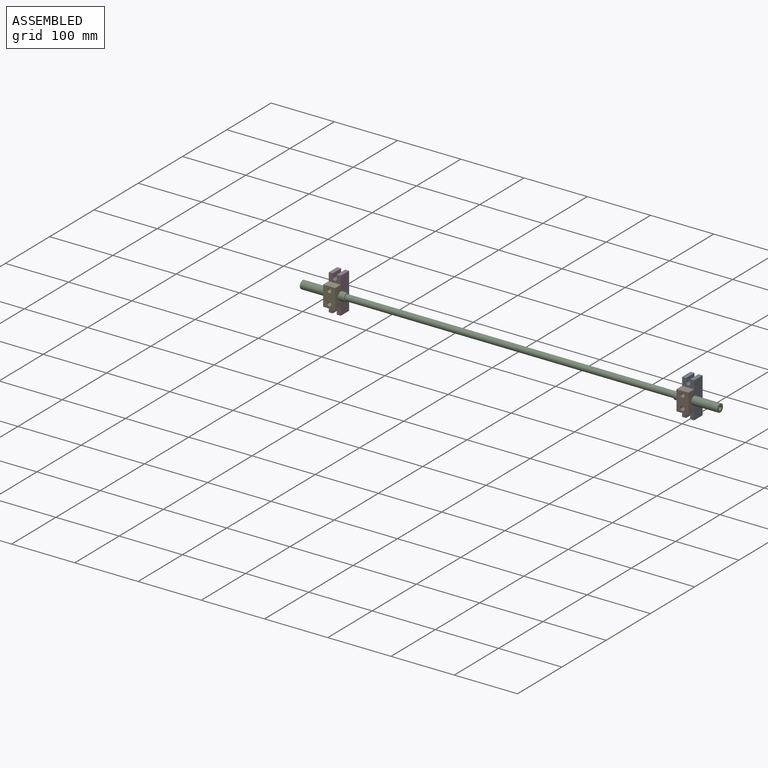
[diagram: assembled view]
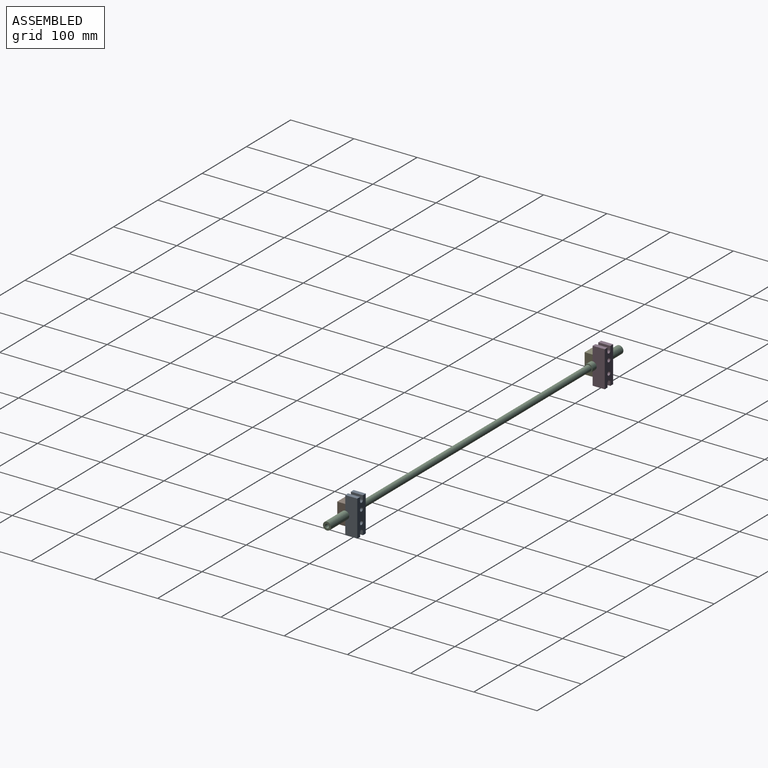
[diagram: assembled view, second angle]
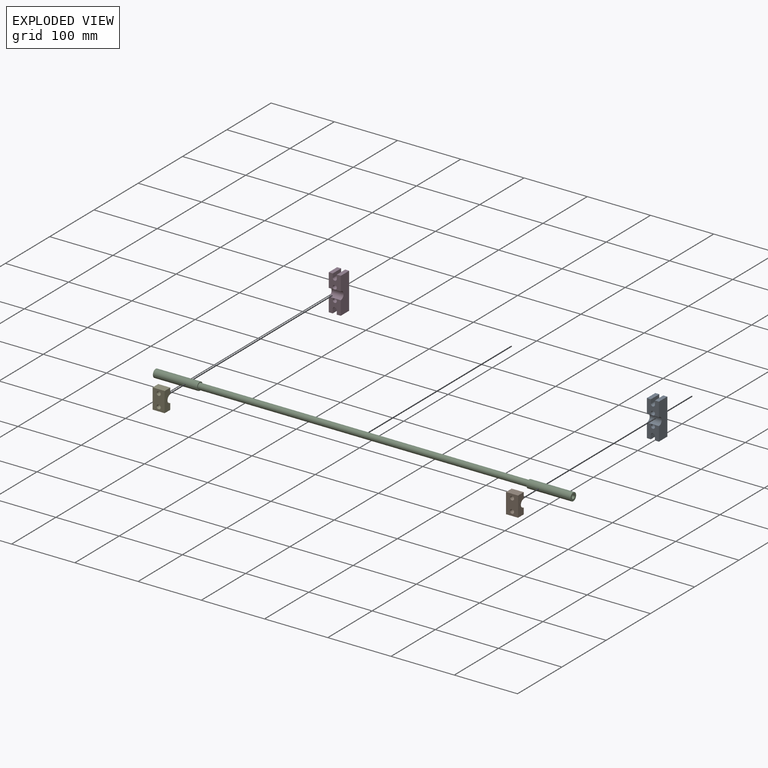
[diagram: exploded view]
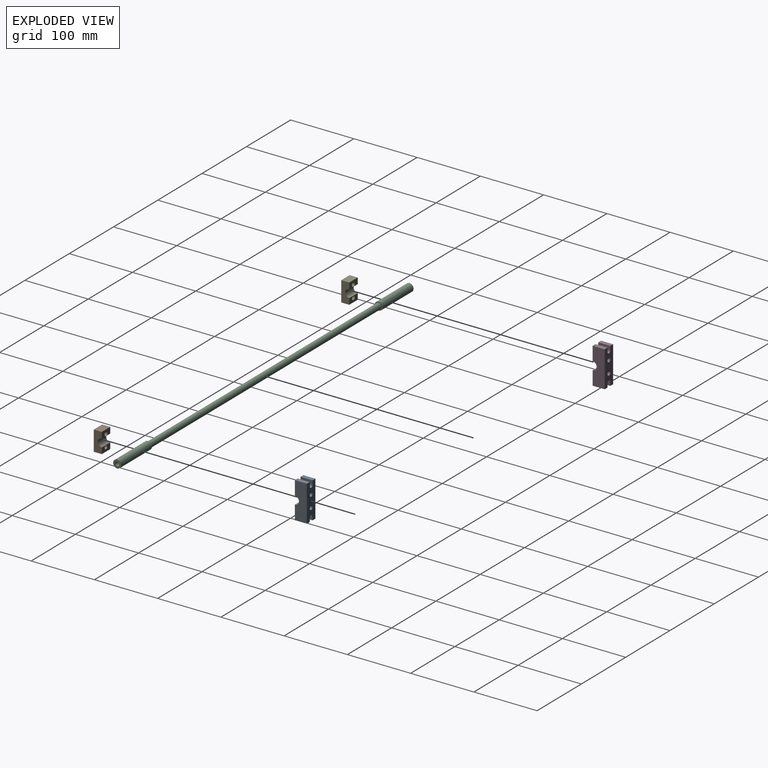
[diagram: exploded view, second angle]
ASSEMBLY  parts=5 mates=4
PART A: 18 faces, bbox 19.1x19.1x57.2 mm
  f0: plane 57.15x19.05mm, normal (1,0,0), area 1025.4mm2, adj f1,f4,f5,f13,f14,f17
  f1: plane 22.23x19.05mm, normal (0,-1,0), area 335.6mm2, adj f0,f2,f3,f4,f10,f11,f12,f15
  f2: cylinder r=3.17mm len=19.05mm, axis (0,1,0), area 190mm2, adj f1,f3,f12,f14
  f3: plane 19.05x6.35mm, normal (-1,0,0), area 121mm2, adj f1,f2,f4,f14
  f4: plane 19.05x6.35mm, normal (0,0,-1), area 121mm2, adj f0,f1,f3,f14
  f5: plane 19.05x6.35mm, normal (0,0,1), area 121mm2, adj f0,f6,f13,f14
  f6: plane 19.05x6.35mm, normal (-1,0,0), area 121mm2, adj f5,f7,f13,f14
  f7: cylinder r=3.17mm len=19.05mm, axis (0,1,0), area 190mm2, adj f6,f8,f13,f14
  f8: plane 19.05x6.35mm, normal (1,0,0), area 121mm2, adj f7,f9,f13,f14
  f9: plane 19.05x6.35mm, normal (0,0,1), area 121mm2, adj f8,f10,f13,f14
  f10: plane 57.15x19.05mm, normal (-1,0,0), area 1025.4mm2, adj f1,f9,f11,f13,f14,f17
  f11: plane 19.05x6.35mm, normal (0,0,-1), area 121mm2, adj f1,f10,f12,f14
  f12: plane 19.05x6.35mm, normal (1,0,0), area 121mm2, adj f1,f2,f11,f14
  f13: plane 22.23x19.05mm, normal (0,-1,0), area 335.6mm2, adj f0,f5,f6,f7,f8,f9,f10,f16
  f14: plane 57.15x19.05mm, normal (0,1,0), area 913.1mm2, adj f0,f2,f3,f4,f5,f6,f7,f8
  f15: cylinder r=3.17mm len=19.05mm, axis (0,-1,0), area 380mm2, adj f1,f14
  f16: cylinder r=3.17mm len=19.05mm, axis (0,-1,0), area 380mm2, adj f13,f14
  f17: cylinder r=6.35mm len=19.05mm, axis (1,0,0), area 380mm2, adj f0,f1,f10,f13
PART B: 10 faces, bbox 19.1x12.7x31.8 mm
  f0: plane 19.05x9.53mm, normal (0,-1,0), area 149.8mm2, adj f1,f2,f5,f6,f9
  f1: plane 19.05x12.7mm, normal (0,0,-1), area 241.9mm2, adj f0,f2,f6,f8
  f2: plane 31.75x12.7mm, normal (1,0,0), area 339.9mm2, adj f0,f1,f3,f7,f8,f9
  f3: plane 19.05x12.7mm, normal (0,0,1), area 241.9mm2, adj f2,f6,f7,f8
  f4: cylinder r=3.17mm len=12.7mm, axis (0,1,0), area 253.4mm2, adj f7,f8
  f5: cylinder r=3.17mm len=12.7mm, axis (0,1,0), area 253.4mm2, adj f0,f8
  f6: plane 31.75x12.7mm, normal (-1,0,0), area 339.9mm2, adj f0,f1,f3,f7,f8,f9
  f7: plane 19.05x9.53mm, normal (0,-1,0), area 149.8mm2, adj f2,f3,f4,f6,f9
  f8: plane 31.75x19.05mm, normal (0,1,0), area 541.5mm2, adj f1,f2,f3,f4,f5,f6
  f9: cylinder r=6.35mm len=19.05mm, axis (1,0,0), area 380mm2, adj f0,f2,f6,f7
PART C: 11 faces, bbox 660.4x12.7x12.7 mm
  f0: plane 6.35x6.35mm, normal (-1,0,0), area 31.7mm2, adj f10
  f1: plane 6.35x6.35mm, normal (1,0,0), area 31.7mm2, adj f2
  f2: cylinder r=3.17mm len=25.4mm, axis (-1,0,0), area 506.7mm2, adj f1,f3
  f3: plane 12.7x12.7mm, normal (1,0,0), area 95mm2, adj f2,f4
  f4: cylinder r=6.35mm len=69.85mm, axis (-1,0,0), area 2786.9mm2, adj f3,f5
  f5: plane 12.7x12.7mm, normal (-1,0,0), area 55.4mm2, adj f4,f6
  f6: cylinder r=4.76mm len=520.7mm, axis (-1,0,0), area 15581.3mm2, adj f5,f7
  f7: plane 12.7x12.7mm, normal (1,0,0), area 55.4mm2, adj f6,f8
  f8: cylinder r=6.35mm len=69.85mm, axis (-1,0,0), area 2786.9mm2, adj f7,f9
  f9: plane 12.7x12.7mm, normal (-1,0,0), area 95mm2, adj f8,f10
  f10: cylinder r=3.17mm len=25.4mm, axis (-1,0,0), area 506.7mm2, adj f0,f9
PART D: same geometry as A
PART E: same geometry as B
PLACE A rot(axis=(0,-1,0),180deg) t=(619.13,19.05,28.58)mm
PLACE B rot(axis=(0,0,1),180deg) t=(609.6,-12.7,0)mm
PLACE C at identity
PLACE D t=(41.28,19.05,-28.58)mm
PLACE E rot(axis=(0,0,1),180deg) t=(50.8,-12.7,0)mm
MATE fastened D.f17 <-> C.f2  axis (1,0,0) through (60.33,0,0)mm
MATE fastened A.f17 <-> C.f2  axis (-1,0,0) through (600.08,0,0)mm
MATE fastened B.f4 <-> A.f15  axis (0,1,0) through (609.6,0,9.52)mm
MATE fastened D.f16 <-> E.f4  axis (0,-1,0) through (50.8,0,9.53)mm
